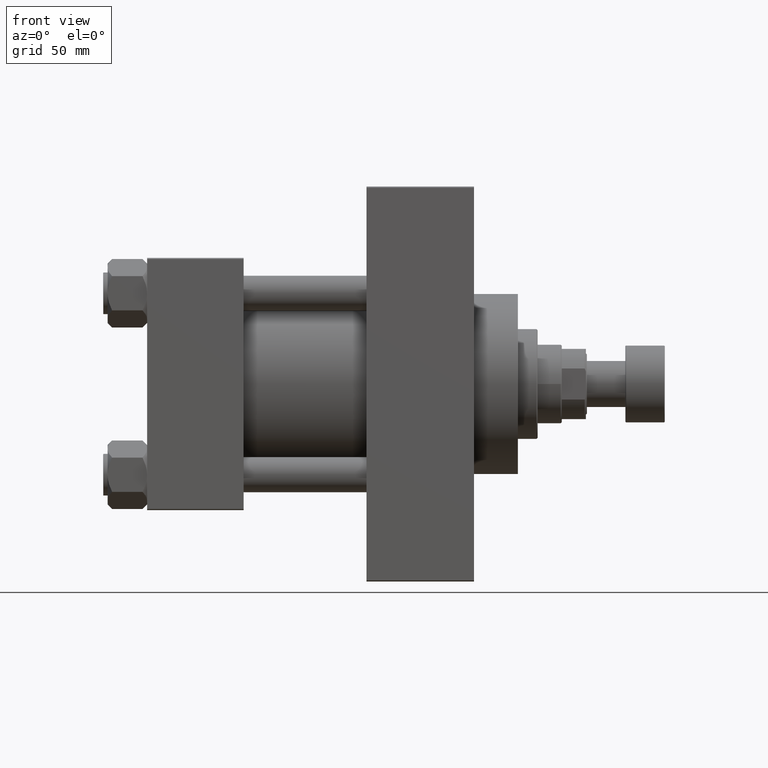
[diagram: clean part render]
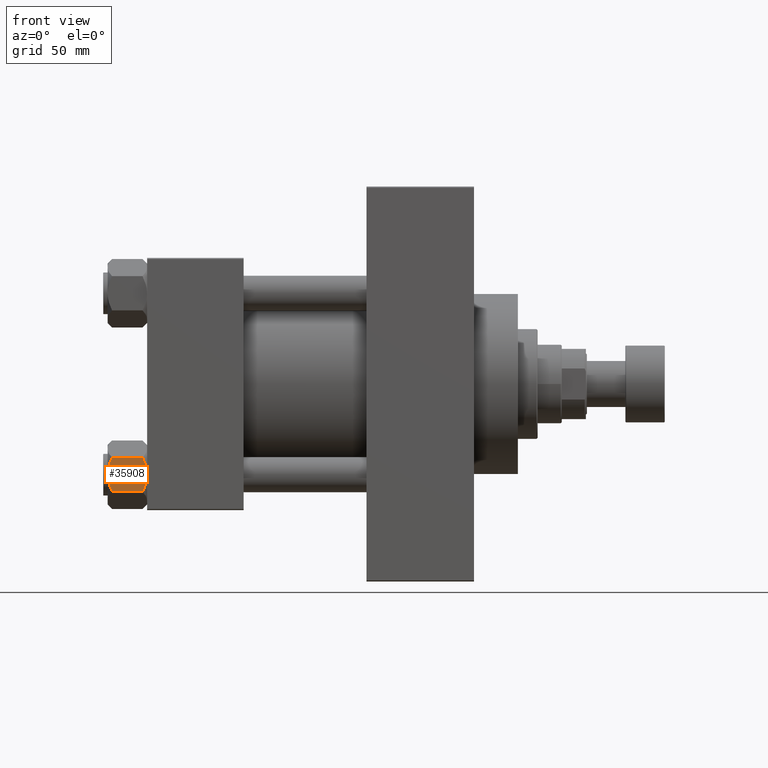
[diagram: same view with one face highlighted and labeled with its STEP entity id]
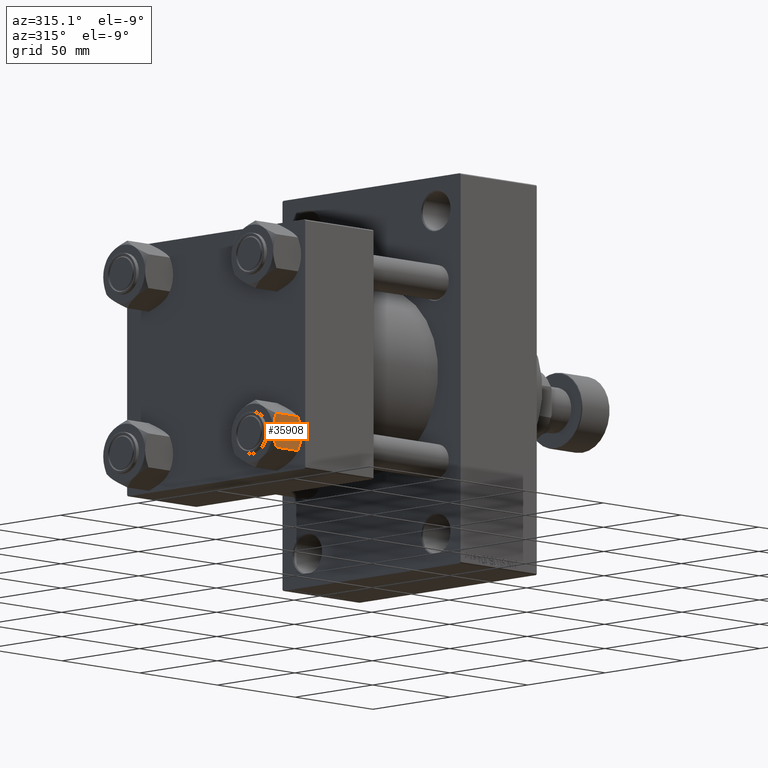
[diagram: same view with one face highlighted and labeled with its STEP entity id]
A machine part, front view. The second image highlights one B-rep face of the part: STEP entity #35908.
A second angle (auxiliary view) of the same face is appended — the face is thin or edge-on in the first view.
In plain terms, the highlighted planar face has unit normal (0, 1, -0).
Its self-contained STEP definition (entity closure, byte-faithful):
#176 = EDGE_CURVE ( 'NONE', #39038, #24890, #31595, .T. ) ;
#212 = CARTESIAN_POINT ( 'NONE',  ( 7.030888348548067768, 13.52731680711294260, -1.709337883550299253 ) ) ;
#502 = VECTOR ( 'NONE', #4462, 1000.000000000000000 ) ;
#924 = CARTESIAN_POINT ( 'NONE',  ( 7.622943475354646559, 13.52731680711293905, -2.000000000000000000 ) ) ;
#1241 = CARTESIAN_POINT ( 'NONE',  ( 6.422751913021825132, 13.52731680711294260, -16.56349088907410660 ) ) ;
#1924 = VECTOR ( 'NONE', #7876, 1000.000000000000000 ) ;
#2588 = EDGE_CURVE ( 'NONE', #15333, #29288, #21623, .T. ) ;
#2591 = DIRECTION ( 'NONE',  ( -1.000000000000000000, 0.000000000000000000, 0.000000000000000000 ) ) ;
#2688 = DIRECTION ( 'NONE',  ( 0.000000000000000000, -1.000000000000000000, 0.000000000000000000 ) ) ;
#2861 = LINE ( 'NONE', #43054, #18794 ) ;
#3502 = ORIENTED_EDGE ( 'NONE', *, *, #22493, .F. ) ;
#4462 = DIRECTION ( 'NONE',  ( -0.000000000000000000, -0.000000000000000000, 1.000000000000000000 ) ) ;
#4482 = CARTESIAN_POINT ( 'NONE',  ( -7.809999999999997833, 13.52731680711293905, -1.999999999999998224 ) ) ;
#4843 = ORIENTED_EDGE ( 'NONE', *, *, #12652, .T. ) ;
#5754 = EDGE_CURVE ( 'NONE', #17163, #7665, #2861, .T. ) ;
#6343 = DIRECTION ( 'NONE',  ( 0.000000000000000000, -0.000000000000000000, -1.000000000000000000 ) ) ;
#6543 = VERTEX_POINT ( 'NONE', #16348 ) ;
#7221 = CARTESIAN_POINT ( 'NONE',  ( 7.810000000000001386, 13.52731680711293905, -16.00000000000000000 ) ) ;
#7665 = VERTEX_POINT ( 'NONE', #10267 ) ;
#7876 = DIRECTION ( 'NONE',  ( 1.000000000000000000, 0.000000000000000000, 0.000000000000000000 ) ) ;
#7887 = CARTESIAN_POINT ( 'NONE',  ( -7.622943475354646559, 13.52731680711293905, -2.000000000000000000 ) ) ;
#8151 = CARTESIAN_POINT ( 'NONE',  ( 7.622943475354646559, 13.52731680711293905, -2.000000000000000000 ) ) ;
#8564 = ORIENTED_EDGE ( 'NONE', *, *, #5754, .F. ) ;
#8793 = CARTESIAN_POINT ( 'NONE',  ( 0.000000000000000000, 13.52731680711293905, -18.00000000000000000 ) ) ;
#8814 = VECTOR ( 'NONE', #27260, 1000.000000000000000 ) ;
#9283 = CARTESIAN_POINT ( 'NONE',  ( 4.557734399832410688, 13.52731680711294260, -17.26585298258849122 ) ) ;
#9786 = ORIENTED_EDGE ( 'NONE', *, *, #2588, .F. ) ;
#10267 = CARTESIAN_POINT ( 'NONE',  ( -7.622943475354646559, 13.52731680711293905, -16.00000000000000000 ) ) ;
#11310 = CARTESIAN_POINT ( 'NONE',  ( -4.557734399832415129, 13.52731680711294260, -0.7341470174115148906 ) ) ;
#11334 = ORIENTED_EDGE ( 'NONE', *, *, #176, .F. ) ;
#11408 = CARTESIAN_POINT ( 'NONE',  ( 1.335584685993417065, 13.52731680711294260, -9.486769009248166263E-17 ) ) ;
#12450 = CARTESIAN_POINT ( 'NONE',  ( 3.287826776903149728, 13.52731680711294082, -17.61954155462466431 ) ) ;
#12652 = EDGE_CURVE ( 'NONE', #17163, #24890, #19470, .T. ) ;
#13175 = VECTOR ( 'NONE', #2591, 1000.000000000000000 ) ;
#13702 = CARTESIAN_POINT ( 'NONE',  ( 0.000000000000000000, 13.52731680711293905, -18.00000000000000000 ) ) ;
#13906 = LINE ( 'NONE', #31926, #38357 ) ;
#14447 = CARTESIAN_POINT ( 'NONE',  ( -7.809999999999997833, 13.52731680711293905, -16.00000000000000000 ) ) ;
#14720 = LINE ( 'NONE', #15678, #1924 ) ;
#14867 = CARTESIAN_POINT ( 'NONE',  ( 0.000000000000000000, 13.52731680711293905, 0.000000000000000000 ) ) ;
#15063 = CARTESIAN_POINT ( 'NONE',  ( 2.638177715023107162, 13.52731680711293905, -0.2001540676698846388 ) ) ;
#15333 = VERTEX_POINT ( 'NONE', #37962 ) ;
#15678 = CARTESIAN_POINT ( 'NONE',  ( -7.809999999999997833, 13.52731680711293905, -16.00000000000000000 ) ) ;
#15788 = CARTESIAN_POINT ( 'NONE',  ( 5.189513245496330640, 13.52731680711293727, -0.9501108431732594450 ) ) ;
#15916 = ORIENTED_EDGE ( 'NONE', *, *, #36271, .F. ) ;
#16348 = CARTESIAN_POINT ( 'NONE',  ( 7.810000000000001386, 13.52731680711293905, -1.999999999999998224 ) ) ;
#16501 = CARTESIAN_POINT ( 'NONE',  ( 0.000000000000000000, 13.52731680711293905, 0.000000000000000000 ) ) ;
#16586 = CARTESIAN_POINT ( 'NONE',  ( 0.6693083573771192452, 13.52731680711293905, -17.98750666918892094 ) ) ;
#16775 = AXIS2_PLACEMENT_3D ( 'NONE', #43366, #2688, #6343 ) ;
#16830 = CARTESIAN_POINT ( 'NONE',  ( 1.333889873825132355, 13.52731680711293727, -17.93843358996560511 ) ) ;
#16874 = CARTESIAN_POINT ( 'NONE',  ( -5.189513245496329752, 13.52731680711293727, -17.04988915682674033 ) ) ;
#17115 = CARTESIAN_POINT ( 'NONE',  ( -1.335584685993417287, 13.52731680711294082, -18.00000000000000000 ) ) ;
#17163 = VERTEX_POINT ( 'NONE', #14447 ) ;
#18490 = CARTESIAN_POINT ( 'NONE',  ( 4.553769687922306630, 13.52731680711293905, -0.7327291995145164272 ) ) ;
#18542 = VERTEX_POINT ( 'NONE', #7221 ) ;
#18621 = CARTESIAN_POINT ( 'NONE',  ( -2.644243758052991389, 13.52731680711294260, -0.2408281198023992098 ) ) ;
#18794 = VECTOR ( 'NONE', #32593, 1000.000000000000000 ) ;
#19266 = B_SPLINE_CURVE_WITH_KNOTS ( 'NONE', 3,
 ( #46797, #47039, #20524, #16874, #42923, #39519, #17115, #13702 ),
 .UNSPECIFIED., .F., .F.,
 ( 4, 2, 2, 4 ),
 ( 0.01980594295952728401, 0.02179054093496182731, 0.02377513891039636715, 0.02774433486126545029 ),
 .UNSPECIFIED. ) ;
#19470 = LINE ( 'NONE', #34805, #8814 ) ;
#19581 = LINE ( 'NONE', #27372, #502 ) ;
#20247 = CARTESIAN_POINT ( 'NONE',  ( 7.030203932307582448, 13.52731680711294082, -16.29099812210859710 ) ) ;
#20390 = CARTESIAN_POINT ( 'NONE',  ( -7.809999999999997833, 13.52731680711293905, -1.999999999999998224 ) ) ;
#20524 = CARTESIAN_POINT ( 'NONE',  ( -6.427364677720471597, 13.52731680711293905, -16.56149306284486400 ) ) ;
#20575 = EDGE_CURVE ( 'NONE', #39703, #39038, #35064, .T. ) ;
#20973 = FACE_OUTER_BOUND ( 'NONE', #26090, .T. ) ;
#21623 = B_SPLINE_CURVE_WITH_KNOTS ( 'NONE', 3,
 ( #8793, #34363, #16586, #16830, #23658, #34856, #12450, #9283, #46030, #1241, #20247, #42648 ),
 .UNSPECIFIED., .F., .F.,
 ( 4, 2, 2, 2, 2, 4 ),
 ( 0.02774433486126545029, 0.02873404020403548878, 0.02972374554680552727, 0.03170315623234559732, 0.03368256691788567431, 0.03566197760342575129 ),
 .UNSPECIFIED. ) ;
#21854 = EDGE_CURVE ( 'NONE', #26985, #39703, #27994, .T. ) ;
#22493 = EDGE_CURVE ( 'NONE', #7665, #15333, #19266, .T. ) ;
#23333 = CARTESIAN_POINT ( 'NONE',  ( 6.427364677720476926, 13.52731680711294082, -1.438506937155140664 ) ) ;
#23658 = CARTESIAN_POINT ( 'NONE',  ( 1.663410456966173179, 13.52731680711293905, -17.90195050864300441 ) ) ;
#24890 = VERTEX_POINT ( 'NONE', #4482 ) ;
#25939 = CARTESIAN_POINT ( 'NONE',  ( -5.184073258379404692, 13.52731680711294082, -0.9481437906500841395 ) ) ;
#26090 = EDGE_LOOP ( 'NONE', ( #8564, #4843, #11334, #46113, #31811, #31409, #15916, #40096, #9786, #3502 ) ) ;
#26985 = VERTEX_POINT ( 'NONE', #8151 ) ;
#27260 = DIRECTION ( 'NONE',  ( -0.000000000000000000, -0.000000000000000000, 1.000000000000000000 ) ) ;
#27372 = CARTESIAN_POINT ( 'NONE',  ( 7.810000000000001386, 13.52731680711293905, -18.00000000000000000 ) ) ;
#27994 = B_SPLINE_CURVE_WITH_KNOTS ( 'NONE', 3,
 ( #924, #212, #23333, #15788, #18490, #15063, #11408, #16501 ),
 .UNSPECIFIED., .F., .F.,
 ( 4, 2, 2, 4 ),
 ( 0.01980594295952728401, 0.02179054093496182731, 0.02377513891039636715, 0.02774433486126545376 ),
 .UNSPECIFIED. ) ;
#28529 = PLANE ( 'NONE',  #16775 ) ;
#29226 = EDGE_CURVE ( 'NONE', #6543, #26985, #13906, .T. ) ;
#29288 = VERTEX_POINT ( 'NONE', #37252 ) ;
#29594 = CARTESIAN_POINT ( 'NONE',  ( -1.333889873825133243, 13.52731680711293727, -0.06156641003439514842 ) ) ;
#29822 = CARTESIAN_POINT ( 'NONE',  ( -1.663410456966174511, 13.52731680711293905, -0.09804949135699092544 ) ) ;
#31409 = ORIENTED_EDGE ( 'NONE', *, *, #29226, .F. ) ;
#31595 = LINE ( 'NONE', #20390, #13175 ) ;
#31811 = ORIENTED_EDGE ( 'NONE', *, *, #21854, .F. ) ;
#31926 = CARTESIAN_POINT ( 'NONE',  ( -7.809999999999997833, 13.52731680711293905, -1.999999999999998224 ) ) ;
#32164 = DIRECTION ( 'NONE',  ( -1.000000000000000000, 0.000000000000000000, 0.000000000000000000 ) ) ;
#32593 = DIRECTION ( 'NONE',  ( 1.000000000000000000, 0.000000000000000000, 0.000000000000000000 ) ) ;
#33281 = EDGE_CURVE ( 'NONE', #29288, #18542, #14720, .T. ) ;
#33476 = CARTESIAN_POINT ( 'NONE',  ( -7.030203932307585113, 13.52731680711294082, -1.709001877891394239 ) ) ;
#33950 = CARTESIAN_POINT ( 'NONE',  ( -3.287826776903153281, 13.52731680711294082, -0.3804584453753372952 ) ) ;
#33952 = CARTESIAN_POINT ( 'NONE',  ( -7.622943475354646559, 13.52731680711293905, -2.000000000000000000 ) ) ;
#34363 = CARTESIAN_POINT ( 'NONE',  ( 0.3330234424833813378, 13.52731680711293905, -18.00000000000000355 ) ) ;
#34805 = CARTESIAN_POINT ( 'NONE',  ( -7.809999999999997833, 13.52731680711293905, -18.00000000000000000 ) ) ;
#34856 = CARTESIAN_POINT ( 'NONE',  ( 2.644243758052989612, 13.52731680711294260, -17.75917188019759863 ) ) ;
#35064 = B_SPLINE_CURVE_WITH_KNOTS ( 'NONE', 3,
 ( #41496, #41024, #41262, #29594, #29822, #18621, #33950, #11310, #25939, #48076, #33476, #7887 ),
 .UNSPECIFIED., .F., .F.,
 ( 4, 2, 2, 2, 2, 4 ),
 ( 0.02774433486126545376, 0.02873404020403549225, 0.02972374554680553074, 0.03170315623234560426, 0.03368256691788568125, 0.03566197760342575823 ),
 .UNSPECIFIED. ) ;
#35908 = ADVANCED_FACE ( 'NONE', ( #20973 ), #28529, .F. ) ;
#36271 = EDGE_CURVE ( 'NONE', #18542, #6543, #19581, .T. ) ;
#37252 = CARTESIAN_POINT ( 'NONE',  ( 7.622943475354646559, 13.52731680711293905, -16.00000000000000000 ) ) ;
#37962 = CARTESIAN_POINT ( 'NONE',  ( 0.000000000000000000, 13.52731680711293905, -18.00000000000000000 ) ) ;
#38357 = VECTOR ( 'NONE', #32164, 1000.000000000000000 ) ;
#39038 = VERTEX_POINT ( 'NONE', #33952 ) ;
#39519 = CARTESIAN_POINT ( 'NONE',  ( -2.638177715023110714, 13.52731680711294260, -17.79984593233011481 ) ) ;
#39703 = VERTEX_POINT ( 'NONE', #14867 ) ;
#40096 = ORIENTED_EDGE ( 'NONE', *, *, #33281, .F. ) ;
#41024 = CARTESIAN_POINT ( 'NONE',  ( -0.3330234424833830031, 13.52731680711293905, 5.717472393966525748E-18 ) ) ;
#41262 = CARTESIAN_POINT ( 'NONE',  ( -0.6693083573771212436, 13.52731680711293905, -0.01249333081108270314 ) ) ;
#41496 = CARTESIAN_POINT ( 'NONE',  ( 0.000000000000000000, 13.52731680711293905, 0.000000000000000000 ) ) ;
#42648 = CARTESIAN_POINT ( 'NONE',  ( 7.622943475354646559, 13.52731680711293905, -16.00000000000000000 ) ) ;
#42923 = CARTESIAN_POINT ( 'NONE',  ( -4.553769687922306630, 13.52731680711293905, -17.26727080048548046 ) ) ;
#43054 = CARTESIAN_POINT ( 'NONE',  ( -7.809999999999997833, 13.52731680711293905, -16.00000000000000000 ) ) ;
#43366 = CARTESIAN_POINT ( 'NONE',  ( -7.809999999999997833, 13.52731680711293905, -18.00000000000000000 ) ) ;
#46030 = CARTESIAN_POINT ( 'NONE',  ( 5.184073258379402027, 13.52731680711294082, -17.05185620934991775 ) ) ;
#46113 = ORIENTED_EDGE ( 'NONE', *, *, #20575, .F. ) ;
#46797 = CARTESIAN_POINT ( 'NONE',  ( -7.622943475354646559, 13.52731680711293905, -16.00000000000000000 ) ) ;
#47039 = CARTESIAN_POINT ( 'NONE',  ( -7.030888348548061551, 13.52731680711293905, -16.29066211644969897 ) ) ;
#48076 = CARTESIAN_POINT ( 'NONE',  ( -6.422751913021825132, 13.52731680711294260, -1.436509110925897614 ) ) ;